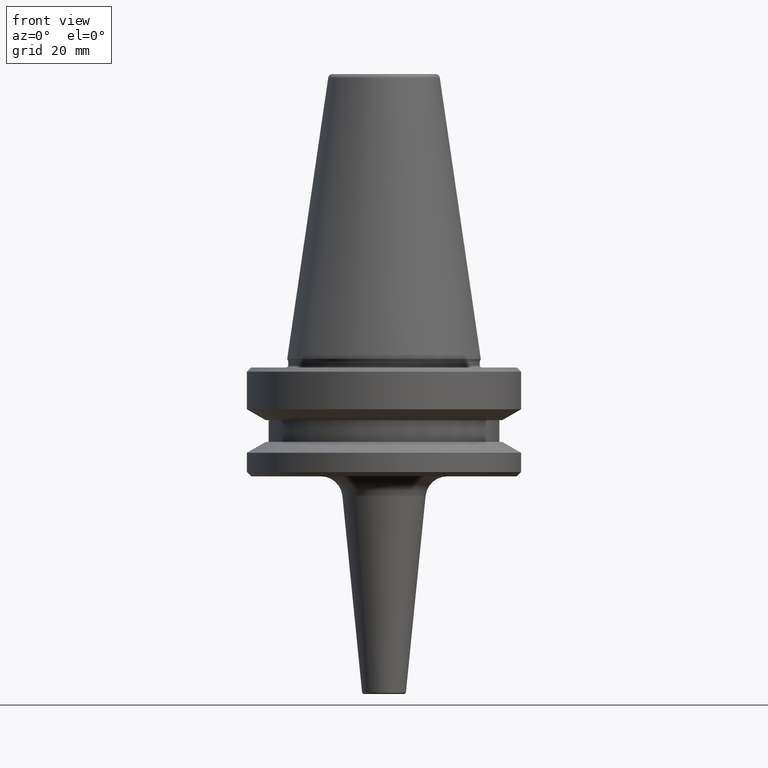
[diagram: clean part render]
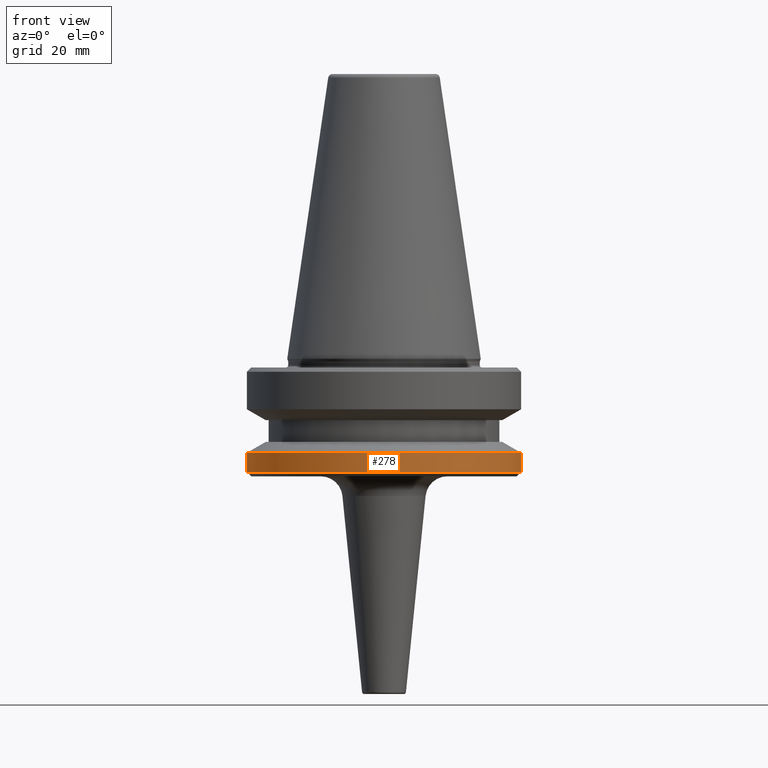
[diagram: same view with one face highlighted and labeled with its STEP entity id]
A machine part, front view. The second image highlights one B-rep face of the part: STEP entity #278.
In plain terms, the highlighted cylindrical surface (partial cylindrical patch) has radius 31.5 mm, axis along (-0, -0, 1).
Its self-contained STEP definition (entity closure, byte-faithful):
#13 = CYLINDRICAL_SURFACE ( 'NONE', #70, 31.50000000000008500 ) ;
#24 = EDGE_CURVE ( 'NONE', #957, #579, #105, .T. ) ;
#53 = DIRECTION ( 'NONE',  ( -0.0000000000000000000, -0.0000000000000000000, 1.000000000000000000 ) ) ;
#70 = AXIS2_PLACEMENT_3D ( 'NONE', #239, #732, #671 ) ;
#83 = FACE_OUTER_BOUND ( 'NONE', #150, .T. ) ;
#105 = LINE ( 'NONE', #687, #729 ) ;
#121 = CARTESIAN_POINT ( 'NONE',  ( -31.50000000000008500, 3.857637417314172900E-015, -91.40000000000037500 ) ) ;
#125 = EDGE_CURVE ( 'NONE', #132, #957, #641, .T. ) ;
#132 = VERTEX_POINT ( 'NONE', #121 ) ;
#133 = LINE ( 'NONE', #468, #562 ) ;
#146 = EDGE_CURVE ( 'NONE', #785, #579, #219, .T. ) ;
#150 = EDGE_LOOP ( 'NONE', ( #252, #830, #1006, #905 ) ) ;
#182 = AXIS2_PLACEMENT_3D ( 'NONE', #952, #926, #948 ) ;
#186 = CARTESIAN_POINT ( 'NONE',  ( 31.50000000000008500, 0.0000000000000000000, -87.00014200631733300 ) ) ;
#209 = EDGE_CURVE ( 'NONE', #132, #785, #133, .T. ) ;
#219 = CIRCLE ( 'NONE', #568, 31.50000000000008500 ) ;
#236 = DIRECTION ( 'NONE',  ( -0.0000000000000000000, -0.0000000000000000000, 1.000000000000000000 ) ) ;
#239 = CARTESIAN_POINT ( 'NONE',  ( 0.0000000000000000000, 0.0000000000000000000, 6.357346922996331500 ) ) ;
#252 = ORIENTED_EDGE ( 'NONE', *, *, #209, .F. ) ;
#278 = ADVANCED_FACE ( 'NONE', ( #83 ), #13, .T. ) ;
#313 = CARTESIAN_POINT ( 'NONE',  ( 31.50000000000008500, 0.0000000000000000000, -91.40000000000037500 ) ) ;
#334 = CARTESIAN_POINT ( 'NONE',  ( 0.0000000000000000000, 0.0000000000000000000, -87.00014200631733300 ) ) ;
#468 = CARTESIAN_POINT ( 'NONE',  ( -31.50000000000008500, 3.857637417314172900E-015, 6.357346922996331500 ) ) ;
#531 = DIRECTION ( 'NONE',  ( 1.000000000000000000, 0.0000000000000000000, 0.0000000000000000000 ) ) ;
#562 = VECTOR ( 'NONE', #236, 1000.000000000000000 ) ;
#568 = AXIS2_PLACEMENT_3D ( 'NONE', #334, #53, #531 ) ;
#579 = VERTEX_POINT ( 'NONE', #186 ) ;
#641 = CIRCLE ( 'NONE', #182, 31.50000000000008500 ) ;
#665 = CARTESIAN_POINT ( 'NONE',  ( -31.50000000000008500, 3.857637417314172900E-015, -87.00014200631733300 ) ) ;
#671 = DIRECTION ( 'NONE',  ( 1.000000000000000000, 0.0000000000000000000, 0.0000000000000000000 ) ) ;
#687 = CARTESIAN_POINT ( 'NONE',  ( 31.50000000000008500, 0.0000000000000000000, 6.357346922996331500 ) ) ;
#729 = VECTOR ( 'NONE', #801, 1000.000000000000000 ) ;
#732 = DIRECTION ( 'NONE',  ( -0.0000000000000000000, -0.0000000000000000000, 1.000000000000000000 ) ) ;
#785 = VERTEX_POINT ( 'NONE', #665 ) ;
#801 = DIRECTION ( 'NONE',  ( -0.0000000000000000000, -0.0000000000000000000, 1.000000000000000000 ) ) ;
#830 = ORIENTED_EDGE ( 'NONE', *, *, #125, .T. ) ;
#905 = ORIENTED_EDGE ( 'NONE', *, *, #146, .F. ) ;
#926 = DIRECTION ( 'NONE',  ( -0.0000000000000000000, -0.0000000000000000000, 1.000000000000000000 ) ) ;
#948 = DIRECTION ( 'NONE',  ( 1.000000000000000000, 0.0000000000000000000, 0.0000000000000000000 ) ) ;
#952 = CARTESIAN_POINT ( 'NONE',  ( 0.0000000000000000000, 0.0000000000000000000, -91.40000000000037500 ) ) ;
#957 = VERTEX_POINT ( 'NONE', #313 ) ;
#1006 = ORIENTED_EDGE ( 'NONE', *, *, #24, .T. ) ;